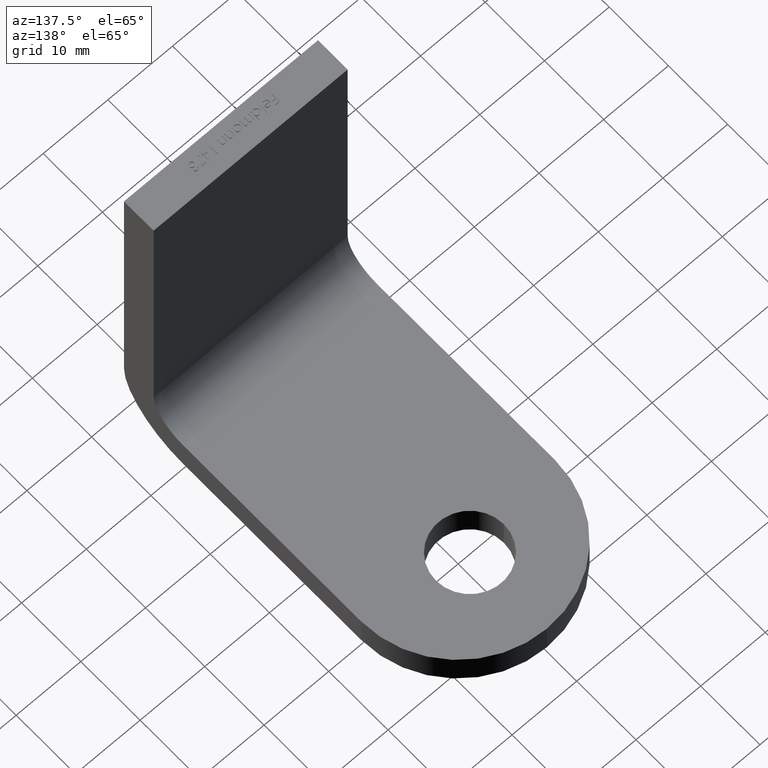
[diagram: clean part render]
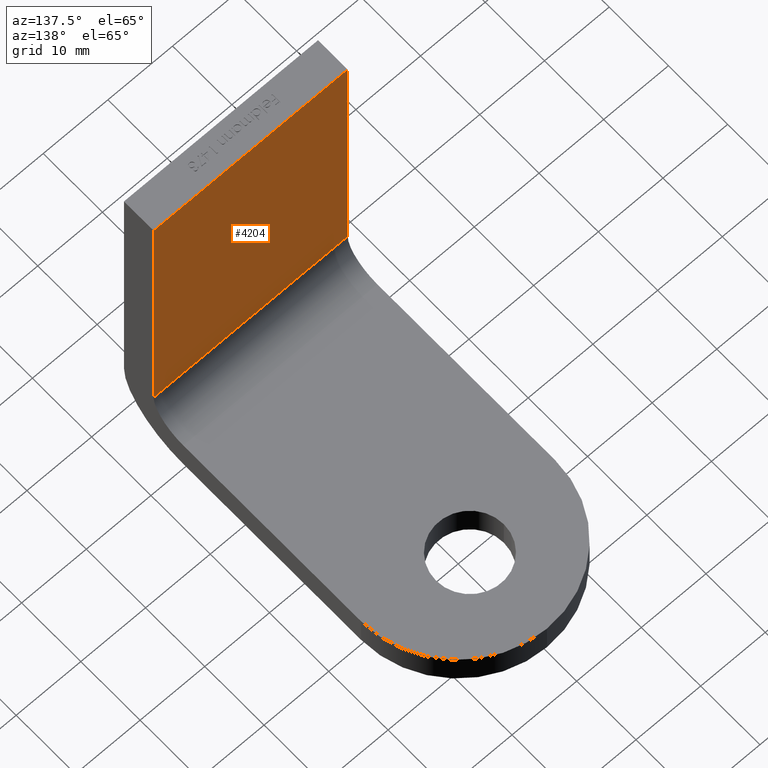
[diagram: same view with one face highlighted and labeled with its STEP entity id]
A machine part, auxiliary view. The second image highlights one B-rep face of the part: STEP entity #4204.
In plain terms, the highlighted planar face has unit normal (-0, 1, 0).
Its self-contained STEP definition (entity closure, byte-faithful):
#9 = ORIENTED_EDGE ( 'NONE', *, *, #7834, .T. ) ;
#61 = CARTESIAN_POINT ( 'NONE',  ( -15.00000000000000000, 5.000000000000000000, 0.0000000000000000000 ) ) ;
#449 = DIRECTION ( 'NONE',  ( 0.0000000000000000000, -0.0000000000000000000, 1.000000000000000000 ) ) ;
#514 = VERTEX_POINT ( 'NONE', #2232 ) ;
#1127 = VECTOR ( 'NONE', #2471, 1000.000000000000000 ) ;
#1221 = LINE ( 'NONE', #2216, #7297 ) ;
#2216 = CARTESIAN_POINT ( 'NONE',  ( 15.00000000000000000, 5.000000000000000000, 0.0000000000000000000 ) ) ;
#2232 = CARTESIAN_POINT ( 'NONE',  ( 15.00000000000000000, 5.000000000000000000, -45.00000000000000000 ) ) ;
#2471 = DIRECTION ( 'NONE',  ( 0.0000000000000000000, 0.0000000000000000000, -1.000000000000000000 ) ) ;
#2857 = LINE ( 'NONE', #4974, #1127 ) ;
#3008 = CARTESIAN_POINT ( 'NONE',  ( 15.00000000000000000, 5.000000000000000000, 0.0000000000000000000 ) ) ;
#3033 = EDGE_LOOP ( 'NONE', ( #3348, #7213, #4200, #9 ) ) ;
#3348 = ORIENTED_EDGE ( 'NONE', *, *, #6502, .F. ) ;
#3388 = VERTEX_POINT ( 'NONE', #4920 ) ;
#4171 = EDGE_CURVE ( 'NONE', #3388, #514, #2857, .T. ) ;
#4200 = ORIENTED_EDGE ( 'NONE', *, *, #4171, .T. ) ;
#4204 = ADVANCED_FACE ( 'NONE', ( #4787 ), #6146, .T. ) ;
#4332 = EDGE_CURVE ( 'NONE', #3388, #4534, #1221, .T. ) ;
#4534 = VERTEX_POINT ( 'NONE', #61 ) ;
#4779 = DIRECTION ( 'NONE',  ( -1.000000000000000000, -0.0000000000000000000, -0.0000000000000000000 ) ) ;
#4787 = FACE_OUTER_BOUND ( 'NONE', #3033, .T. ) ;
#4799 = CARTESIAN_POINT ( 'NONE',  ( 15.00000000000000000, 5.000000000000000000, -45.00000000000000000 ) ) ;
#4920 = CARTESIAN_POINT ( 'NONE',  ( 15.00000000000000000, 5.000000000000000000, 0.0000000000000000000 ) ) ;
#4946 = VECTOR ( 'NONE', #7493, 1000.000000000000000 ) ;
#4974 = CARTESIAN_POINT ( 'NONE',  ( 15.00000000000000000, 5.000000000000000000, 0.0000000000000000000 ) ) ;
#5002 = DIRECTION ( 'NONE',  ( -0.0000000000000000000, 1.000000000000000000, 0.0000000000000000000 ) ) ;
#5030 = CARTESIAN_POINT ( 'NONE',  ( -15.00000000000000000, 5.000000000000000000, 0.0000000000000000000 ) ) ;
#5031 = VECTOR ( 'NONE', #6661, 1000.000000000000000 ) ;
#5569 = LINE ( 'NONE', #5030, #4946 ) ;
#6125 = CARTESIAN_POINT ( 'NONE',  ( -15.00000000000000000, 5.000000000000000000, -45.00000000000000000 ) ) ;
#6146 = PLANE ( 'NONE',  #8373 ) ;
#6260 = LINE ( 'NONE', #4799, #5031 ) ;
#6502 = EDGE_CURVE ( 'NONE', #4534, #7484, #5569, .T. ) ;
#6661 = DIRECTION ( 'NONE',  ( -1.000000000000000000, -0.0000000000000000000, -0.0000000000000000000 ) ) ;
#7213 = ORIENTED_EDGE ( 'NONE', *, *, #4332, .F. ) ;
#7297 = VECTOR ( 'NONE', #4779, 1000.000000000000000 ) ;
#7484 = VERTEX_POINT ( 'NONE', #6125 ) ;
#7493 = DIRECTION ( 'NONE',  ( 0.0000000000000000000, 0.0000000000000000000, -1.000000000000000000 ) ) ;
#7834 = EDGE_CURVE ( 'NONE', #514, #7484, #6260, .T. ) ;
#8373 = AXIS2_PLACEMENT_3D ( 'NONE', #3008, #5002, #449 ) ;